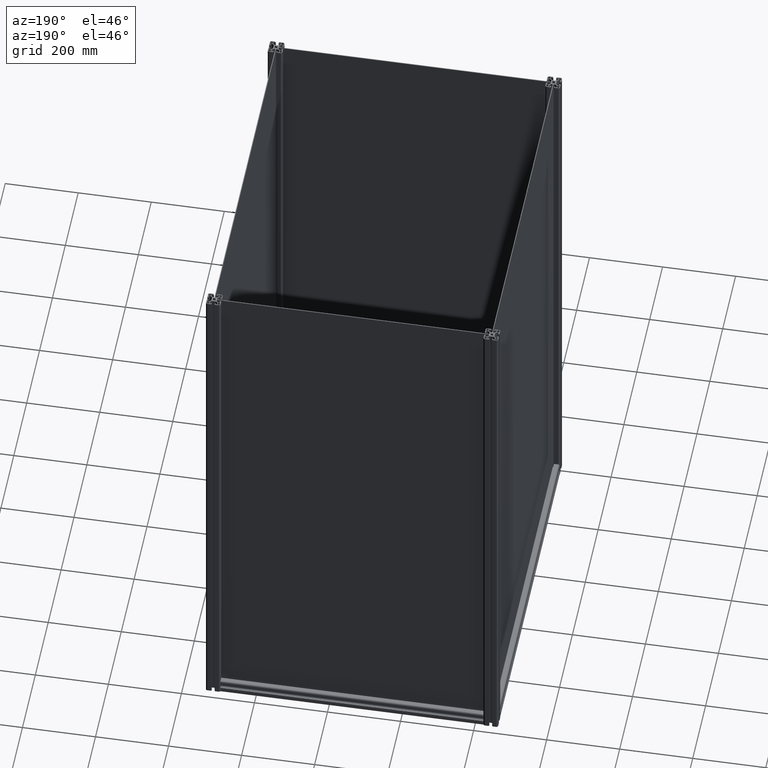
[diagram: clean part render]
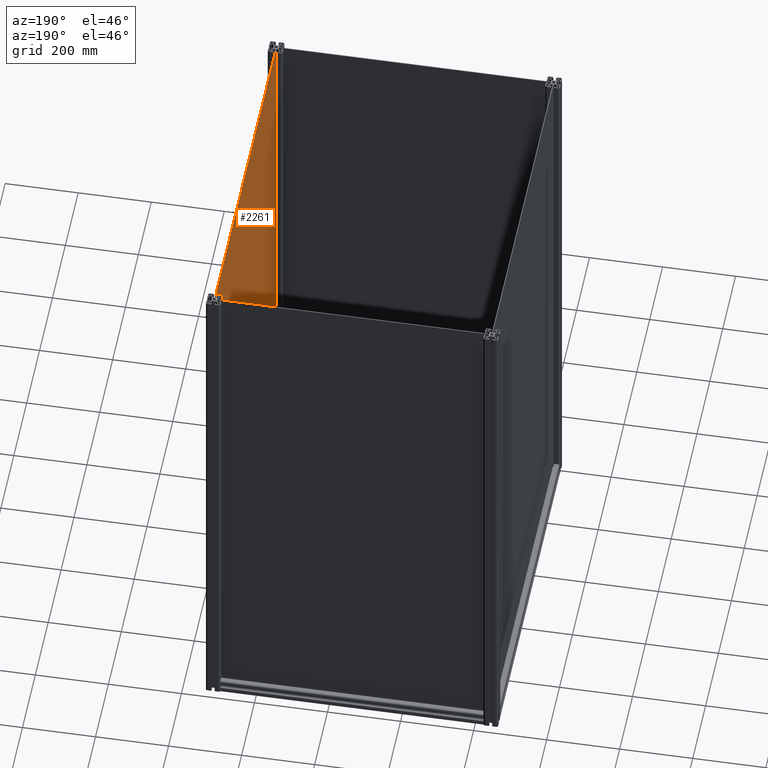
[diagram: same view with one face highlighted and labeled with its STEP entity id]
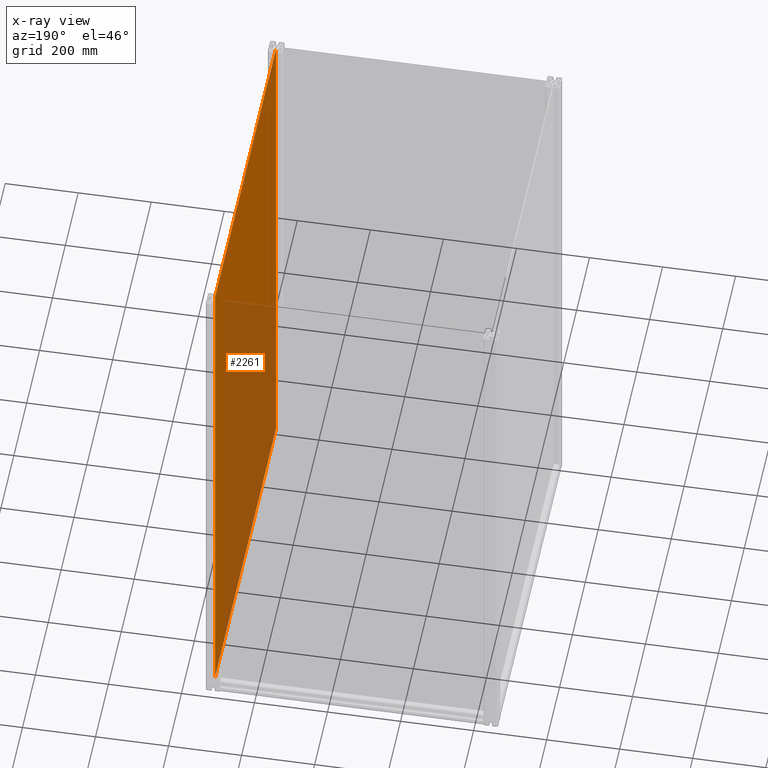
[diagram: x-ray of the same camera — body ghosted, the highlighted face saturated]
A machine part, auxiliary view. The second image highlights one B-rep face of the part: STEP entity #2261.
The next image is the same camera in x-ray: the body ghosted, the highlighted face saturated — about 52% of this face is hidden behind the body in this view.
In plain terms, the highlighted planar face has unit normal (1, 0, 0).
Its self-contained STEP definition (entity closure, byte-faithful):
#105 = VERTEX_POINT ( 'NONE', #4246 ) ;
#276 = ORIENTED_EDGE ( 'NONE', *, *, #1039, .F. ) ;
#320 = VECTOR ( 'NONE', #5200, 1000.000000000000000 ) ;
#1039 = EDGE_CURVE ( 'NONE', #8983, #10846, #15392, .T. ) ;
#1163 = CARTESIAN_POINT ( 'NONE',  ( 0.000000000000000000, 0.000000000000000000, -2.000000000000000000 ) ) ;
#1280 = DIRECTION ( 'NONE',  ( 1.000000000000000000, 0.000000000000000000, 0.000000000000000000 ) ) ;
#1685 = VERTEX_POINT ( 'NONE', #4419 ) ;
#1829 = DIRECTION ( 'NONE',  ( -1.000000000000000000, 0.000000000000000000, 0.000000000000000000 ) ) ;
#2227 = EDGE_CURVE ( 'NONE', #105, #1685, #11393, .T. ) ;
#2261 = ADVANCED_FACE ( 'NONE', ( #11426 ), #4983, .F. ) ;
#2736 = DIRECTION ( 'NONE',  ( 0.000000000000000000, 0.000000000000000000, 1.000000000000000000 ) ) ;
#4246 = CARTESIAN_POINT ( 'NONE',  ( 344.0730375426621777, -1214.526962457337504, -2.000000000000445866 ) ) ;
#4419 = CARTESIAN_POINT ( 'NONE',  ( -600.7269624573376632, -1214.526962457337504, -2.000000000000001776 ) ) ;
#4983 = PLANE ( 'NONE',  #16352 ) ;
#5198 = CARTESIAN_POINT ( 'NONE',  ( -600.7269624573378906, 257.8730375426625301, -2.000000000000000000 ) ) ;
#5200 = DIRECTION ( 'NONE',  ( -1.000000000000000000, 0.000000000000000000, 0.000000000000000000 ) ) ;
#5385 = EDGE_CURVE ( 'NONE', #10846, #1685, #9235, .T. ) ;
#6474 = VECTOR ( 'NONE', #7939, 1000.000000000000000 ) ;
#6505 = LINE ( 'NONE', #16473, #6474 ) ;
#7909 = DIRECTION ( 'NONE',  ( 0.000000000000000000, -1.000000000000000000, 0.000000000000000000 ) ) ;
#7935 = CARTESIAN_POINT ( 'NONE',  ( -600.7269624573378906, 257.8730375426625301, -2.000000000000000000 ) ) ;
#7939 = DIRECTION ( 'NONE',  ( 0.000000000000000000, -1.000000000000000000, 0.000000000000000000 ) ) ;
#8983 = VERTEX_POINT ( 'NONE', #9283 ) ;
#9235 = LINE ( 'NONE', #5198, #9373 ) ;
#9283 = CARTESIAN_POINT ( 'NONE',  ( 344.0730375426621777, 257.8730375426625301, -2.000000000000001776 ) ) ;
#9373 = VECTOR ( 'NONE', #7909, 1000.000000000000000 ) ;
#9703 = VECTOR ( 'NONE', #1829, 1000.000000000000000 ) ;
#10846 = VERTEX_POINT ( 'NONE', #7935 ) ;
#11055 = EDGE_LOOP ( 'NONE', ( #276, #13428, #11517, #13262 ) ) ;
#11393 = LINE ( 'NONE', #13915, #320 ) ;
#11426 = FACE_OUTER_BOUND ( 'NONE', #11055, .T. ) ;
#11517 = ORIENTED_EDGE ( 'NONE', *, *, #2227, .T. ) ;
#13097 = CARTESIAN_POINT ( 'NONE',  ( -600.7269624573378906, 257.8730375426625301, -2.000000000000000000 ) ) ;
#13262 = ORIENTED_EDGE ( 'NONE', *, *, #5385, .F. ) ;
#13265 = EDGE_CURVE ( 'NONE', #8983, #105, #6505, .T. ) ;
#13428 = ORIENTED_EDGE ( 'NONE', *, *, #13265, .T. ) ;
#13915 = CARTESIAN_POINT ( 'NONE',  ( -600.7269624573376632, -1214.526962457337504, -2.000000000000001776 ) ) ;
#15392 = LINE ( 'NONE', #13097, #9703 ) ;
#16352 = AXIS2_PLACEMENT_3D ( 'NONE', #1163, #2736, #1280 ) ;
#16473 = CARTESIAN_POINT ( 'NONE',  ( 344.0730375426621777, 257.8730375426625301, -2.000000000000001776 ) ) ;